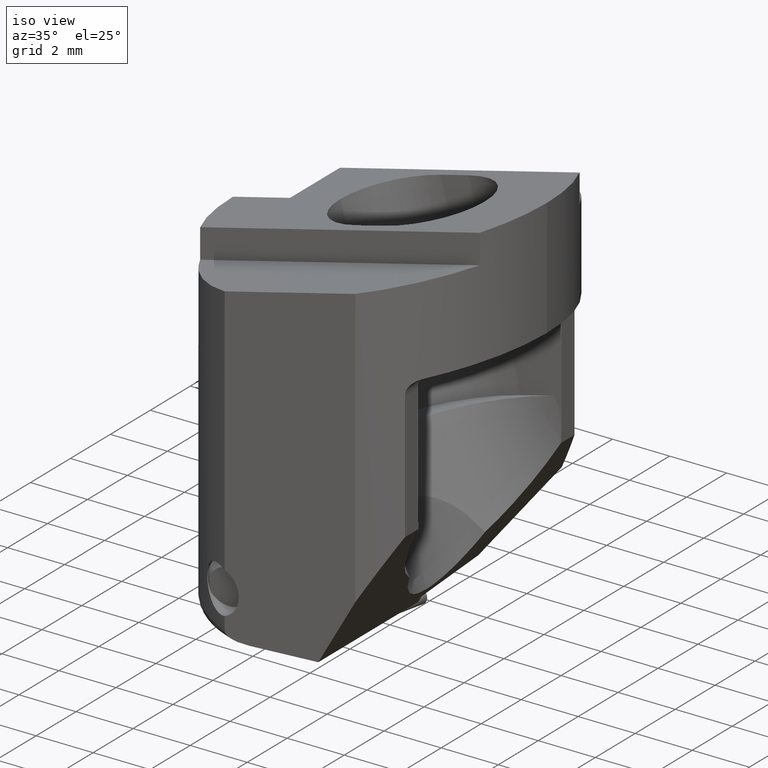
[diagram: clean part render]
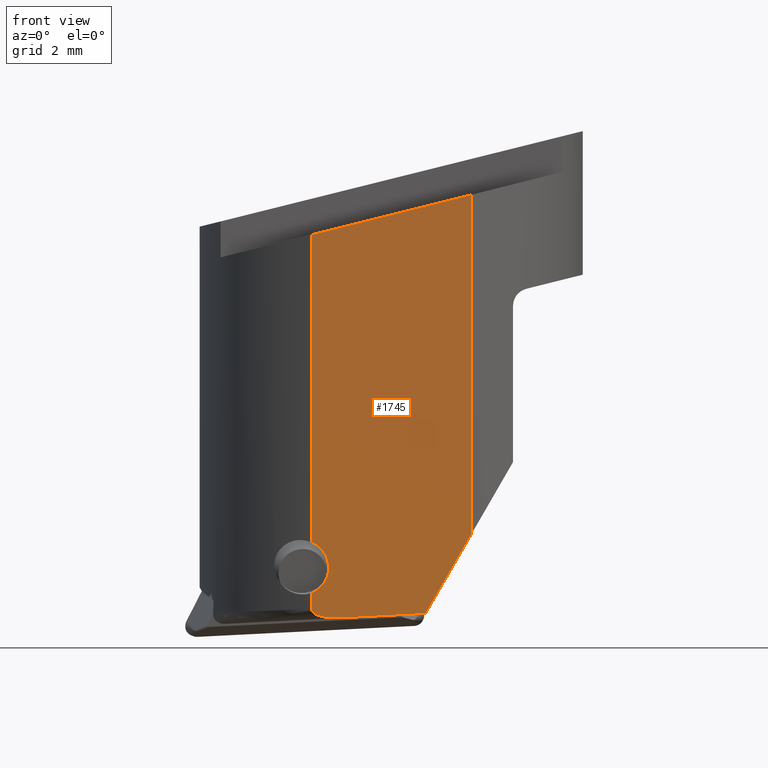
[diagram: tour spotlight — one face highlighted and labeled with its STEP entity id]
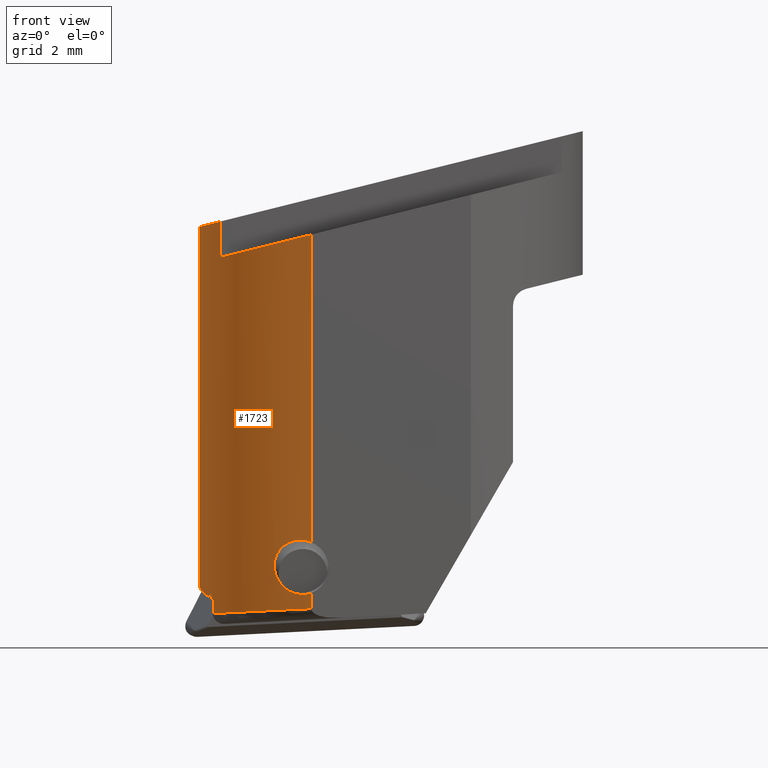
[diagram: tour spotlight — one face highlighted and labeled with its STEP entity id]
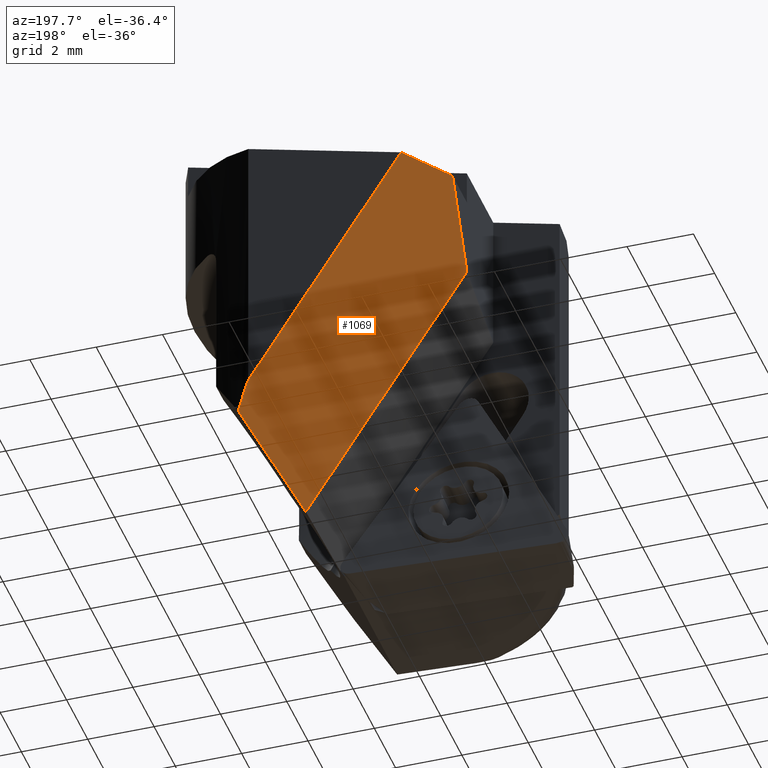
[diagram: tour spotlight — one face highlighted and labeled with its STEP entity id]
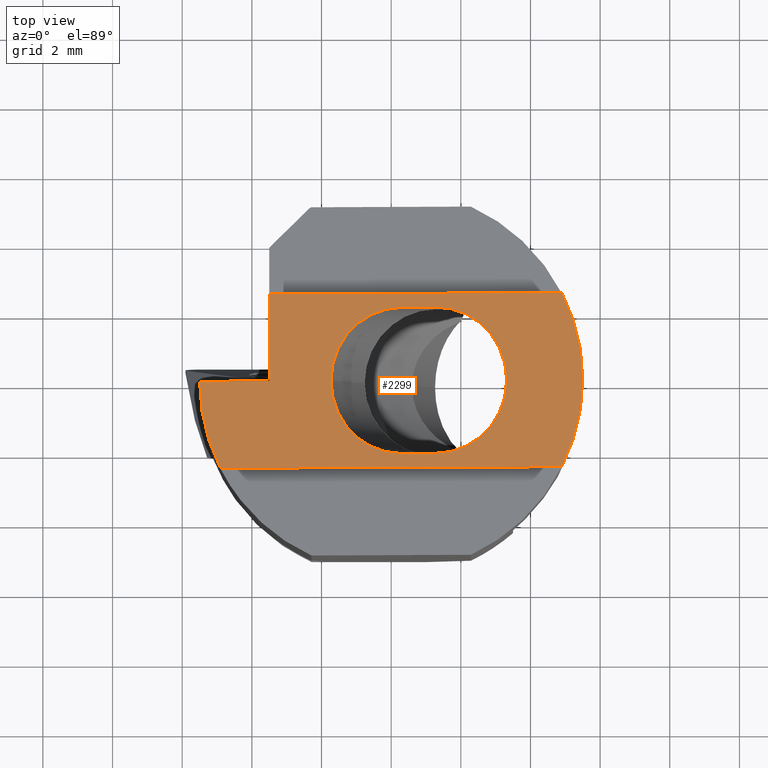
[diagram: tour spotlight — one face highlighted and labeled with its STEP entity id]
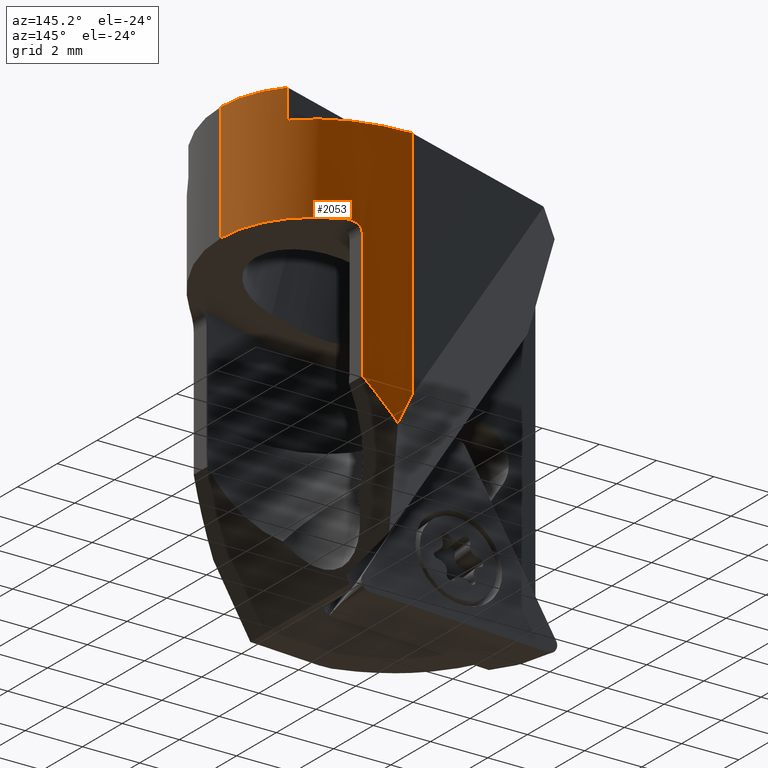
[diagram: tour spotlight — one face highlighted and labeled with its STEP entity id]
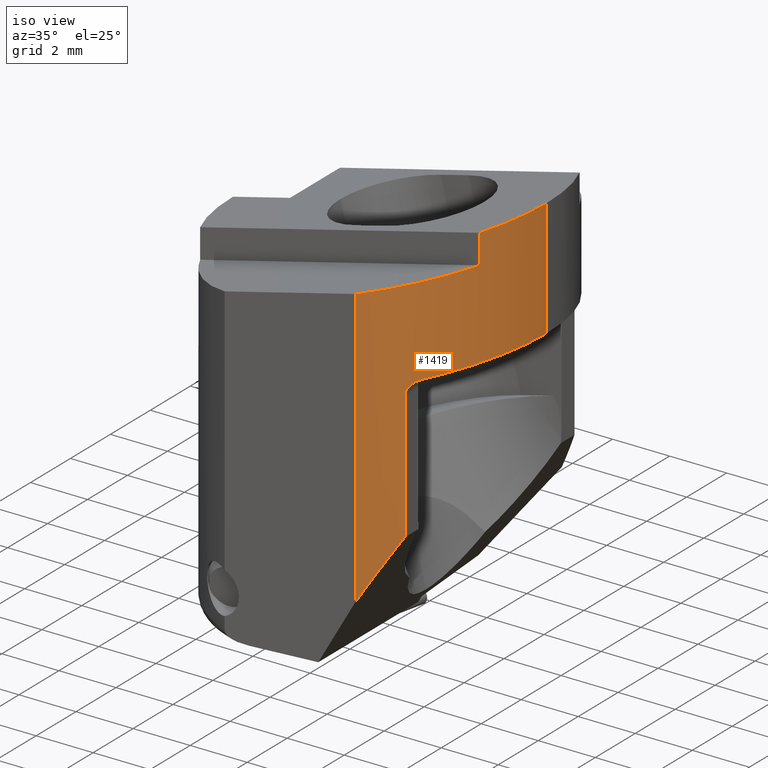
[diagram: tour spotlight — one face highlighted and labeled with its STEP entity id]
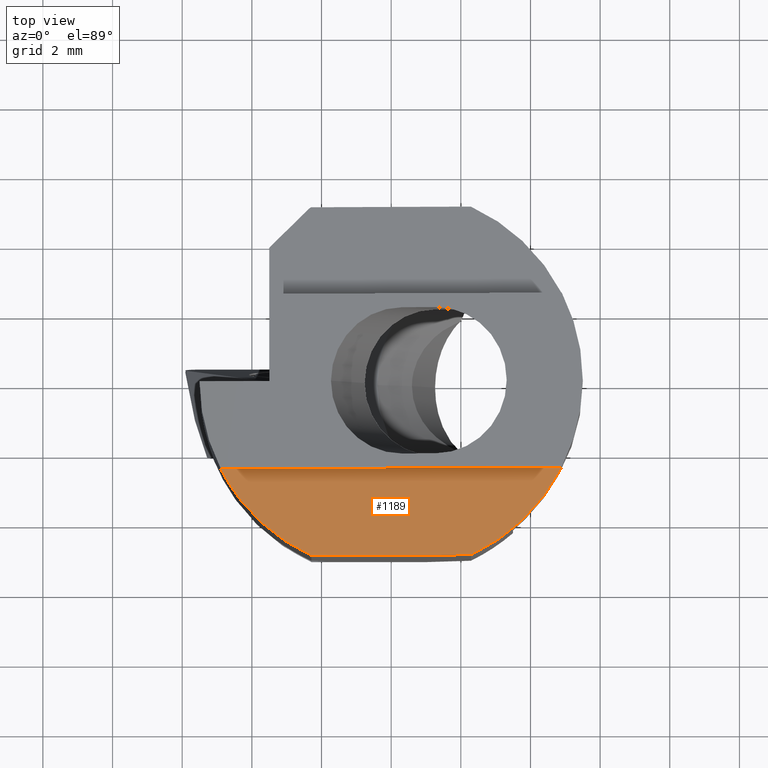
[diagram: tour spotlight — one face highlighted and labeled with its STEP entity id]
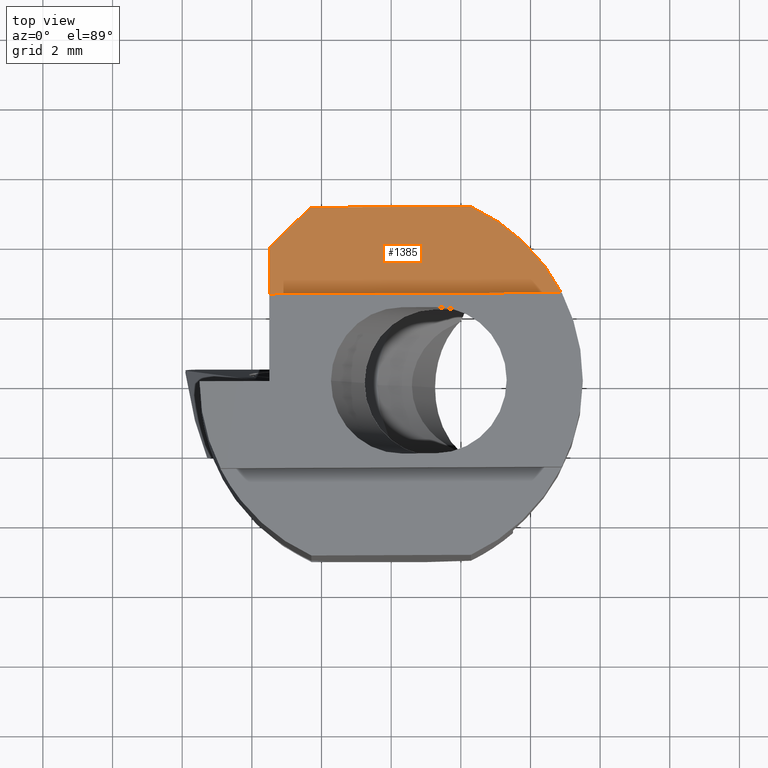
[diagram: tour spotlight — one face highlighted and labeled with its STEP entity id]
A machine part: a face-by-face anatomy tour. The part has 152 B-rep faces; the first image is the clean iso view, then the 8 largest visible faces are spotlighted one at a time (largest first), each with its STEP entity span.

Face 1 — front view, entity #1745. In plain terms, the highlighted planar face has unit normal (0, 1, 0).
Definition (entity closure, byte-faithful):
#971=EDGE_CURVE('NONE',#1629,#1835,#2559,.T.);
#1005=EDGE_CURVE('NONE',#1951,#1009,#2593,.T.);
#1009=VERTEX_POINT('NONE',#2597);
#1089=EDGE_CURVE('NONE',#1327,#1121,#2683,.F.);
#1121=VERTEX_POINT('NONE',#2716);
#1141=EDGE_CURVE('NONE',#1243,#1439,#2738,.T.);
#1157=VERTEX_POINT('NONE',#2756);
#1201=EDGE_CURVE('NONE',#1121,#1439,#2804,.F.);
#1243=VERTEX_POINT('NONE',#2851);
#1327=VERTEX_POINT('NONE',#2946);
#1439=VERTEX_POINT('NONE',#3073);
#1629=VERTEX_POINT('NONE',#3279);
#1745=ADVANCED_FACE('NONE',(#3405),#3406,.F.);
#1757=EDGE_CURVE('NONE',#1157,#1009,#3420,.T.);
#1809=EDGE_CURVE('NONE',#1951,#1629,#3477,.F.);
#1835=VERTEX_POINT('NONE',#3509);
#1951=VERTEX_POINT('NONE',#3634);
#2185=EDGE_CURVE('NONE',#1243,#1157,#3903,.T.);
#2359=EDGE_CURVE('NONE',#1835,#1327,#4097,.F.);
#2559=ELLIPSE('',#4362,0.782979473283811,0.78);
#2593=LINE('',#4423,#4424);
#2597=CARTESIAN_POINT('',(2.29128784747793,-5.0,-1.83063542203684));
#2683=LINE('',#4554,#4555);
#2716=CARTESIAN_POINT('',(-2.29128784747793,-5.0,-13.7103005992828));
#2738=LINE('',#4635,#4636);
#2756=CARTESIAN_POINT('',(2.29128784747792,-5.0,-11.5935508598942));
#2804=B_SPLINE_CURVE_WITH_KNOTS('',3,(#4725,#4726,#4727,#4728,#4729,#4730,#4731,#4732,#4733,#4734,#4735,#4736,#4737,#4738,#4739,#4740,#4741,#4742,#4743,#4744,#4745,#4746),.UNSPECIFIED.,.F.,.F.,(4,3,3,3,3,3,3,4),(0.0,0.5,0.75,0.875,0.9375,0.97221819758733,0.995920473331074,1.0),.UNSPECIFIED.);
#2851=CARTESIAN_POINT('',(0.991652417371709,-5.0,-13.8445854561548));
#2946=CARTESIAN_POINT('',(-2.29128784747792,-5.0,-13.263499003807));
#3073=CARTESIAN_POINT('',(-1.41252546348537,-5.0,-13.9710613761084));
#3279=CARTESIAN_POINT('',(-2.29128784747793,-5.0,-11.8038153555449));
#3405=FACE_OUTER_BOUND('',#5596,.T.);
#3406=PLANE('',#5597);
#3420=LINE('',#5616,#5617);
#3477=LINE('',#5688,#5689);
#3509=CARTESIAN_POINT('',(-1.7947886100061,-5.0,-12.4927221509311));
#3634=CARTESIAN_POINT('',(-2.29128784747792,-5.0,-2.97319986793785));
#3903=LINE('',#7046,#7047);
#4097=ELLIPSE('',#7321,0.782979473283811,0.78);
#4362=AXIS2_PLACEMENT_3D('',#7522,#7523,#7524);
#4423=CARTESIAN_POINT('',(-13.8905534233775,-5.0,-5.86522158842447));
#4424=VECTOR('',#7549,1.0);
#4554=CARTESIAN_POINT('',(-2.29128784747792,-5.0,-2.99853184945959E-016));
#4555=VECTOR('',#7649,1.0);
#4635=CARTESIAN_POINT('',(0.255275580821004,-5.0,-13.8833238284594));
#4636=VECTOR('',#7709,1.0);
#4725=CARTESIAN_POINT('',(-1.41252546348537,-5.0,-13.9710613761084));
#4726=CARTESIAN_POINT('',(-1.57616893842215,-5.0,-13.9796699294064));
#4727=CARTESIAN_POINT('',(-1.74102049605385,-5.0,-13.9811700698687));
#4728=CARTESIAN_POINT('',(-1.9030346534869,-5.0,-13.9539331846187));
#4729=CARTESIAN_POINT('',(-1.98404173220342,-5.0,-13.9403147419937));
#4730=CARTESIAN_POINT('',(-2.0645643932259,-5.0,-13.9211904645761));
#4731=CARTESIAN_POINT('',(-2.13875361350192,-5.0,-13.8862693020174));
#4732=CARTESIAN_POINT('',(-2.17584822363993,-5.0,-13.8688087207381));
#4733=CARTESIAN_POINT('',(-2.21143896686653,-5.0,-13.847090953245));
#4734=CARTESIAN_POINT('',(-2.24130033084107,-5.0,-13.818935259113));
#4735=CARTESIAN_POINT('',(-2.25623101282834,-5.0,-13.804857412047));
#4736=CARTESIAN_POINT('',(-2.26896055466302,-5.0,-13.7883201156439));
#4737=CARTESIAN_POINT('',(-2.27743793362269,-5.0,-13.7695950561679));
#4738=CARTESIAN_POINT('',(-2.28214704270661,-5.0,-13.7591934511323));
#4739=CARTESIAN_POINT('',(-2.28710907826473,-5.0,-13.7490193795026));
#4740=CARTESIAN_POINT('',(-2.28850932932944,-5.0,-13.7374103275377));
#4741=CARTESIAN_POINT('',(-2.28946528727521,-5.0,-13.7294847735079));
#4742=CARTESIAN_POINT('',(-2.29263910143178,-5.0,-13.7229522548933));
#4743=CARTESIAN_POINT('',(-2.29172152690847,-5.0,-13.7145747429056));
#4744=CARTESIAN_POINT('',(-2.29156359820242,-5.0,-13.7131328440794));
#4745=CARTESIAN_POINT('',(-2.29128696124504,-5.0,-13.7116376195962));
#4746=CARTESIAN_POINT('',(-2.29128784747792,-5.0,-13.7103005992828));
#5596=EDGE_LOOP('',(#8487,#8488,#8489,#8490,#8491,#8492,#8493,#8494,#8495));
#5597=AXIS2_PLACEMENT_3D('',#8496,#8497,#8498);
#5616=CARTESIAN_POINT('',(2.29128784747792,-5.0,-8.61056850613773E-016));
#5617=VECTOR('',#8517,1.0);
#5688=CARTESIAN_POINT('',(-2.29128784747792,-5.0,-2.99853184945959E-016));
#5689=VECTOR('',#8580,1.0);
#7046=CARTESIAN_POINT('',(-5.37540648533549,-5.0,-24.8726549704273));
#7047=VECTOR('',#9159,1.0);
#7321=AXIS2_PLACEMENT_3D('',#9398,#9399,#9400);
#7522=CARTESIAN_POINT('',(-2.57371964711467,-5.0,-12.5335441968006));
#7523=DIRECTION('',(0.0,1.0,0.0));
#7524=DIRECTION('',(0.0523359562429379,0.0,-0.998629534754574));
#7549=DIRECTION('',(0.970295726275998,0.0,0.241921895599661));
#7649=DIRECTION('',(1.22464679914735E-016,-0.0,1.0));
#7709=DIRECTION('',(-0.998619131815289,0.0,-0.0525340801050081));
#8487=ORIENTED_EDGE('',*,*,#1089,.T.);
#8488=ORIENTED_EDGE('',*,*,#1201,.T.);
#8489=ORIENTED_EDGE('',*,*,#1141,.F.);
#8490=ORIENTED_EDGE('',*,*,#2185,.T.);
#8491=ORIENTED_EDGE('',*,*,#1757,.T.);
#8492=ORIENTED_EDGE('',*,*,#1005,.F.);
#8493=ORIENTED_EDGE('',*,*,#1809,.T.);
#8494=ORIENTED_EDGE('',*,*,#971,.T.);
#8495=ORIENTED_EDGE('',*,*,#2359,.T.);
#8496=CARTESIAN_POINT('',(-9.47954982912627,-5.0,-31.0));
#8497=DIRECTION('',(0.0,1.0,0.0));
#8498=DIRECTION('',(1.0,0.0,-1.22464679914735E-016));
#8517=DIRECTION('',(1.22464679914735E-016,-0.0,1.0));
#8580=DIRECTION('',(1.22464679914735E-016,-0.0,1.0));
#9159=DIRECTION('',(0.500000000000002,0.0,0.866025403784438));
#9398=CARTESIAN_POINT('',(-2.57371964711467,-5.0,-12.5335441968006));
#9399=DIRECTION('',(0.0,-1.0,0.0));
#9400=DIRECTION('',(0.0523359562429379,0.0,-0.998629534754574));

Face 2 — front view, entity #1723. In plain terms, the highlighted cylindrical surface (partial cylindrical patch) has radius 5.5 mm, axis along (0, -0, 1).
Definition (entity closure, byte-faithful):
#1079=VERTEX_POINT('NONE',#2673);
#1089=EDGE_CURVE('NONE',#1327,#1121,#2683,.F.);
#1121=VERTEX_POINT('NONE',#2716);
#1179=VERTEX_POINT('NONE',#2779);
#1205=EDGE_CURVE('NONE',#1285,#1851,#2808,.T.);
#1217=VERTEX_POINT('NONE',#2822);
#1285=VERTEX_POINT('NONE',#2898);
#1327=VERTEX_POINT('NONE',#2946);
#1373=EDGE_CURVE('NONE',#2113,#1629,#2997,.F.);
#1405=VERTEX_POINT('NONE',#3033);
#1415=EDGE_CURVE('NONE',#1581,#1217,#3046,.F.);
#1429=EDGE_CURVE('NONE',#1581,#1901,#3063,.T.);
#1483=EDGE_CURVE('NONE',#1327,#2113,#3119,.T.);
#1581=VERTEX_POINT('NONE',#3226);
#1613=EDGE_CURVE('NONE',#1851,#1217,#3261,.T.);
#1629=VERTEX_POINT('NONE',#3279);
#1649=EDGE_CURVE('NONE',#1951,#1079,#3299,.T.);
#1723=ADVANCED_FACE('NONE',(#3380),#3381,.T.);
#1747=EDGE_CURVE('NONE',#2091,#1285,#3408,.T.);
#1809=EDGE_CURVE('NONE',#1951,#1629,#3477,.F.);
#1851=VERTEX_POINT('NONE',#3525);
#1901=VERTEX_POINT('NONE',#3581);
#1951=VERTEX_POINT('NONE',#3634);
#2091=VERTEX_POINT('NONE',#3798);
#2113=VERTEX_POINT('NONE',#3821);
#2117=EDGE_CURVE('NONE',#1901,#1179,#3825,.T.);
#2149=EDGE_CURVE('NONE',#1179,#1121,#3861,.F.);
#2217=EDGE_CURVE('NONE',#1405,#1079,#3935,.T.);
#2365=EDGE_CURVE('NONE',#2091,#1405,#4103,.T.);
#2673=CARTESIAN_POINT('',(-4.89897948556636,-2.5,-3.62337041609328));
#2683=LINE('',#4554,#4555);
#2716=CARTESIAN_POINT('',(-2.29128784747793,-5.0,-13.7103005992828));
#2779=CARTESIAN_POINT('',(-5.11268489702953,-2.02742524983936,-13.8506291780769));
#2808=ELLIPSE('',#4751,6.19567831724319,5.5);
#2822=CARTESIAN_POINT('',(-5.16964095755024,-1.87744836680509,-13.2723184413551));
#2898=CARTESIAN_POINT('',(-5.5,0.0,-13.097473321439));
#2946=CARTESIAN_POINT('',(-2.29128784747792,-5.0,-13.263499003807));
#2997=B_SPLINE_CURVE_WITH_KNOTS('',3,(#4994,#4995,#4996,#4997,#4998,#4999,#5000,#5001,#5002,#5003,#5004,#5005,#5006,#5007,#5008),.UNSPECIFIED.,.F.,.F.,(4,2,2,2,2,3,4),(3.47310137906908,3.78272490721872,4.11303378383692,4.44334266045511,4.74857975052637,5.05381684059763,5.09482191756925),.UNSPECIFIED.);
#3033=CARTESIAN_POINT('',(-4.89897948556636,-2.5,-2.59275678674339));
#3046=ELLIPSE('',#5069,21.3069059312565,5.5);
#3063=ELLIPSE('',#5089,6.19567831724319,5.5);
#3119=B_SPLINE_CURVE_WITH_KNOTS('',3,(#5168,#5169,#5170,#5171,#5172,#5173,#5174,#5175,#5176,#5177,#5178,#5179),.UNSPECIFIED.,.F.,.F.,(4,2,2,2,2,4),(3.4377941927064,3.74447789738551,4.09755731561157,4.45063673383764,4.75222678721763,5.01281176362601),.UNSPECIFIED.);
#3226=CARTESIAN_POINT('',(-5.13516988530629,-1.96977923865681,-13.4516064303271));
#3261=ELLIPSE('',#5367,12.1657069361372,5.5);
#3279=CARTESIAN_POINT('',(-2.29128784747793,-5.0,-11.8038153555449));
#3299=ELLIPSE('',#5448,5.66837496142443,5.5);
#3380=FACE_OUTER_BOUND('',#5565,.T.);
#3381=CYLINDRICAL_SURFACE('',#5566,5.5);
#3408=LINE('',#5600,#5601);
#3477=LINE('',#5688,#5689);
#3525=CARTESIAN_POINT('',(-5.23243898601753,-1.69457435882994,-13.3784430877874));
#3581=CARTESIAN_POINT('',(-5.09965898518187,-2.05997044514086,-13.4774427309688));
#3634=CARTESIAN_POINT('',(-2.29128784747792,-5.0,-2.97319986793785));
#3798=CARTESIAN_POINT('',(-5.5,6.73533494602308E-016,-2.74260803127491));
#3821=CARTESIAN_POINT('',(-3.35559140920948,-4.35775243611194,-12.5182538672466));
#3825=ELLIPSE('',#6901,63.1920253256835,5.5);
#3861=B_SPLINE_CURVE_WITH_KNOTS('',3,(#6949,#6950,#6951,#6952,#6953,#6954,#6955,#6956,#6957,#6958),.UNSPECIFIED.,.F.,.F.,(4,3,3,4),(0.0,0.494897694643977,0.670201107981378,1.0),.UNSPECIFIED.);
#3935=LINE('',#7092,#7093);
#4103=ELLIPSE('',#7332,5.66837496142443,5.5);
#4554=CARTESIAN_POINT('',(-2.29128784747792,-5.0,-2.99853184945959E-016));
#4555=VECTOR('',#7649,1.0);
#4751=AXIS2_PLACEMENT_3D('',#7784,#7785,#7786);
#4994=CARTESIAN_POINT('',(-2.29128784747793,-5.0,-11.8038153555449));
#4995=CARTESIAN_POINT('',(-2.38452297332803,-4.95727429783632,-11.7637670622196));
#4996=CARTESIAN_POINT('',(-2.48323257738755,-4.90858327158296,-11.7426223301573));
#4997=CARTESIAN_POINT('',(-2.67157388039941,-4.80882470815306,-11.7338313872695));
#4998=CARTESIAN_POINT('',(-2.77505604129143,-4.7499201673362,-11.747770921544));
#4999=CARTESIAN_POINT('',(-2.96712848537303,-4.63236723295886,-11.8162697852042));
#5000=CARTESIAN_POINT('',(-3.05579298988827,-4.5738076982176,-11.8707734292447));
#5001=CARTESIAN_POINT('',(-3.19366210902708,-4.4785044198203,-12.0003467443159));
#5002=CARTESIAN_POINT('',(-3.25393146954031,-4.43447008017279,-12.0822066821532));
#5003=CARTESIAN_POINT('',(-3.33550998883233,-4.37343893767484,-12.2695744253623));
#5004=CARTESIAN_POINT('',(-3.35667236078201,-4.35691985952945,-12.3753013521829));
#5005=CARTESIAN_POINT('',(-3.35667236078201,-4.35691985952945,-12.4770470488733));
#5006=CARTESIAN_POINT('',(-3.35667236078201,-4.35691985952945,-12.4907154078638));
#5007=CARTESIAN_POINT('',(-3.35631415687178,-4.35719590017233,-12.5044630203115));
#5008=CARTESIAN_POINT('',(-3.35559140920948,-4.35775243611194,-12.5182538672466));
#5069=AXIS2_PLACEMENT_3D('',#8090,#8091,#8092);
#5089=AXIS2_PLACEMENT_3D('',#8123,#8124,#8125);
#5168=CARTESIAN_POINT('',(-2.29128784747792,-5.0,-13.263499003807));
#5169=CARTESIAN_POINT('',(-2.38527842913614,-4.95692810449383,-13.2962704783194));
#5170=CARTESIAN_POINT('',(-2.48409780968231,-4.90812498479522,-13.3085244762428));
#5171=CARTESIAN_POINT('',(-2.67827557802366,-4.8052750261829,-13.2994611128473));
#5172=CARTESIAN_POINT('',(-2.78666877604757,-4.74320143717184,-13.2722635037085));
#5173=CARTESIAN_POINT('',(-2.98437211414643,-4.62136406495953,-13.1757169653893));
#5174=CARTESIAN_POINT('',(-3.07379805112137,-4.56171360956906,-13.1064622358828));
#5175=CARTESIAN_POINT('',(-3.20523454440864,-4.47011391466644,-12.9582890586026));
#5176=CARTESIAN_POINT('',(-3.2604915003529,-4.42960914135009,-12.8725697509303));
#5177=CARTESIAN_POINT('',(-3.33112012406048,-4.37667825081558,-12.6952312464426));
#5178=CARTESIAN_POINT('',(-3.35099838813891,-4.36128919095809,-12.6058939301037));
#5179=CARTESIAN_POINT('',(-3.35559140920948,-4.35775243611194,-12.5182538672466));
#5367=AXIS2_PLACEMENT_3D('',#8312,#8313,#8314);
#5448=AXIS2_PLACEMENT_3D('',#8335,#8336,#8337);
#5565=EDGE_LOOP('',(#8442,#8443,#8444,#8445,#8446,#8447,#8448,#8449,#8450,#8451,#8452,#8453,#8454,#8455));
#5566=AXIS2_PLACEMENT_3D('',#8456,#8457,#8458);
#5600=CARTESIAN_POINT('',(-5.5,0.0,5.67941808236266E-016));
#5601=VECTOR('',#8499,1.0);
#5688=CARTESIAN_POINT('',(-2.29128784747792,-5.0,-2.99853184945959E-016));
#5689=VECTOR('',#8580,1.0);
#6901=AXIS2_PLACEMENT_3D('',#9043,#9044,#9045);
#6949=CARTESIAN_POINT('',(-2.29128784747792,-5.0,-13.7103005992828));
#6950=CARTESIAN_POINT('',(-2.92040573464716,-4.71170196609963,-13.7415813224583));
#6951=CARTESIAN_POINT('',(-3.49457982830119,-4.30337941010404,-13.7701085152068));
#6952=CARTESIAN_POINT('',(-3.97410814110144,-3.80216576214548,-13.7939978339325));
#6953=CARTESIAN_POINT('',(-4.14396738865013,-3.62462510222861,-13.8024599447086));
#6954=CARTESIAN_POINT('',(-4.30099384437443,-3.43685871561837,-13.8101779008129));
#6955=CARTESIAN_POINT('',(-4.44585465523934,-3.23795867553722,-13.8174222201871));
#6956=CARTESIAN_POINT('',(-4.71838177841756,-2.86376737148672,-13.8310509822149));
#6957=CARTESIAN_POINT('',(-4.94254313539954,-2.45648235816362,-13.8421656774898));
#6958=CARTESIAN_POINT('',(-5.11268489702953,-2.02742524983936,-13.8506291780769));
#7092=CARTESIAN_POINT('',(-4.89897948556636,-2.5,7.44563666962445E-016));
#7093=VECTOR('',#9176,1.0);
#7332=AXIS2_PLACEMENT_3D('',#9403,#9404,#9405);
#7649=DIRECTION('',(1.22464679914735E-016,-0.0,1.0));
#7784=CARTESIAN_POINT('',(-1.94857483342956E-015,0.0,-15.9113210011755));
#7785=DIRECTION('',(0.454162972261685,-0.0754790873051704,0.887715552418685));
#7786=DIRECTION('',(0.875704278916419,-0.145536654810685,-0.460392330511695));
#8090=CARTESIAN_POINT('',(5.66639729735113E-016,0.0,4.62696452666703));
#8091=DIRECTION('',(-0.626740961602152,-0.735230234760868,0.258132270248196));
#8092=DIRECTION('',(0.167457263354005,0.196444225910245,0.966109585428336));
#8123=CARTESIAN_POINT('',(-1.94857483342956E-015,0.0,-15.9113210011755));
#8124=DIRECTION('',(0.454162972261685,-0.0754790873051704,0.887715552418685));
#8125=DIRECTION('',(0.875704278916419,-0.145536654810685,-0.460392330511695));
#8312=CARTESIAN_POINT('',(-3.55619435164856E-016,0.0,-2.9038530571627));
#8313=DIRECTION('',(-0.890906947131282,-0.043577871373828,0.452090456302437));
#8314=DIRECTION('',(0.451550592491225,0.0220871704971213,0.891972095595067));
#8335=CARTESIAN_POINT('',(-2.9415007557493E-016,0.0,-2.40191764498735));
#8336=DIRECTION('',(0.241921895599661,3.88896262387368E-017,-0.970295726275998));
#8337=DIRECTION('',(0.970295726275998,0.0,0.241921895599661));
#8442=ORIENTED_EDGE('',*,*,#2117,.T.);
#8443=ORIENTED_EDGE('',*,*,#2149,.T.);
#8444=ORIENTED_EDGE('',*,*,#1089,.F.);
#8445=ORIENTED_EDGE('',*,*,#1483,.T.);
#8446=ORIENTED_EDGE('',*,*,#1373,.T.);
#8447=ORIENTED_EDGE('',*,*,#1809,.F.);
#8448=ORIENTED_EDGE('',*,*,#1649,.T.);
#8449=ORIENTED_EDGE('',*,*,#2217,.F.);
#8450=ORIENTED_EDGE('',*,*,#2365,.F.);
#8451=ORIENTED_EDGE('',*,*,#1747,.T.);
#8452=ORIENTED_EDGE('',*,*,#1205,.T.);
#8453=ORIENTED_EDGE('',*,*,#1613,.T.);
#8454=ORIENTED_EDGE('',*,*,#1415,.F.);
#8455=ORIENTED_EDGE('',*,*,#1429,.T.);
#8456=CARTESIAN_POINT('',(0.0,0.0,0.0));
#8457=DIRECTION('',(1.22464679914735E-016,-0.0,1.0));
#8458=DIRECTION('',(1.0,0.0,-1.22464679914735E-016));
#8499=DIRECTION('',(-1.22464679914735E-016,0.0,-1.0));
#8580=DIRECTION('',(1.22464679914735E-016,-0.0,1.0));
#9043=CARTESIAN_POINT('',(-4.505238424544E-015,0.0,-36.7880635272204));
#9044=DIRECTION('',(0.00456137913876213,-0.996194698091746,-0.0870362988312799));
#9045=DIRECTION('',(0.000398517877010244,-0.0870353864686632,0.996205140864949));
#9176=DIRECTION('',(-1.22464679914735E-016,0.0,-1.0));
#9403=CARTESIAN_POINT('',(-1.67936307340832E-016,0.0,-1.37130401563745));
#9404=DIRECTION('',(-0.241921895599661,0.0,0.970295726275998));
#9405=DIRECTION('',(0.970295726275998,0.0,0.241921895599661));

Face 3 — auxiliary view, entity #1069. In plain terms, the highlighted planar face has unit normal (0.593, -0.7071, 0.3851).
Definition (entity closure, byte-faithful):
#865=EDGE_CURVE('NONE',#2255,#1177,#2444,.T.);
#879=EDGE_CURVE('NONE',#1547,#887,#2460,.F.);
#887=VERTEX_POINT('NONE',#2470);
#997=VERTEX_POINT('NONE',#2585);
#1069=ADVANCED_FACE('NONE',(#2662),#2663,.F.);
#1101=EDGE_CURVE('NONE',#1187,#997,#2695,.T.);
#1177=VERTEX_POINT('NONE',#2777);
#1187=VERTEX_POINT('NONE',#2788);
#1547=VERTEX_POINT('NONE',#3190);
#1559=EDGE_CURVE('NONE',#1975,#1547,#3203,.T.);
#1789=EDGE_CURVE('NONE',#1177,#1975,#3455,.F.);
#1975=VERTEX_POINT('NONE',#3663);
#2023=EDGE_CURVE('NONE',#887,#1187,#3720,.T.);
#2255=VERTEX_POINT('NONE',#3976);
#2341=EDGE_CURVE('NONE',#997,#2255,#4079,.F.);
#2444=LINE('',#4192,#4193);
#2460=LINE('',#4217,#4218);
#2470=CARTESIAN_POINT('',(-3.5,2.49596890300842,-5.75478938998411));
#2585=CARTESIAN_POINT('',(2.65314188419159,4.81776277356496,-10.9668012833822));
#2662=FACE_OUTER_BOUND('',#4522,.T.);
#2663=PLANE('',#4523);
#2695=LINE('',#4574,#4575);
#2777=CARTESIAN_POINT('',(-2.29128784747792,5.0,-3.01844532769661));
#2788=CARTESIAN_POINT('',(1.35023679453946,2.49596890300842,-13.2234990960998));
#3190=CARTESIAN_POINT('',(-3.5,3.84679556468505,-3.27456565493845));
#3203=LINE('',#5290,#5291);
#3455=ELLIPSE('',#5662,14.2813388189068,5.5);
#3663=CARTESIAN_POINT('',(-2.33957436697045,4.97758895263709,-2.98523904940717));
#3720=LINE('',#5996,#5997);
#3976=CARTESIAN_POINT('',(2.29128784747792,5.0,-10.0749930843874));
#4079=ELLIPSE('',#7293,14.2813388189068,5.5);
#4192=CARTESIAN_POINT('',(1.39105570015339,5.0,-8.68875714142274));
#4193=VECTOR('',#7382,1.0);
#4217=CARTESIAN_POINT('',(-3.5,5.99905568606557,0.677152791612382));
#4218=VECTOR('',#7405,1.0);
#4522=EDGE_LOOP('',(#7629,#7630,#7631,#7632,#7633,#7634,#7635));
#4523=AXIS2_PLACEMENT_3D('',#7636,#7637,#7638);
#4574=CARTESIAN_POINT('',(-0.593144552031376,-0.967162014552761,-16.5895343268421));
#4575=VECTOR('',#7658,1.0);
#5290=CARTESIAN_POINT('',(-5.2033028006127,2.18698774090871,-3.6992467404524));
#5291=VECTOR('',#8258,1.0);
#5662=AXIS2_PLACEMENT_3D('',#8553,#8554,#8555);
#5996=CARTESIAN_POINT('',(-7.93153152145359,2.49596890300842,1.06917073594219));
#5997=VECTOR('',#8906,1.0);
#7293=AXIS2_PLACEMENT_3D('',#9388,#9389,#9390);
#7382=DIRECTION('',(-0.544639035015028,0.0,0.838670567945423));
#7405=DIRECTION('',(1.5224073078903E-016,0.478300076895649,0.878196468019324));
#7629=ORIENTED_EDGE('',*,*,#1789,.F.);
#7630=ORIENTED_EDGE('',*,*,#865,.F.);
#7631=ORIENTED_EDGE('',*,*,#2341,.F.);
#7632=ORIENTED_EDGE('',*,*,#1101,.F.);
#7633=ORIENTED_EDGE('',*,*,#2023,.F.);
#7634=ORIENTED_EDGE('',*,*,#879,.F.);
#7635=ORIENTED_EDGE('',*,*,#1559,.F.);
#7636=CARTESIAN_POINT('',(-7.93153152145359,2.49596890300842,1.06917073594219));
#7637=DIRECTION('',(0.593029645775781,-0.707106781186549,0.385117954958023));
#7638=DIRECTION('',(-1.07548049358238E-016,-0.478300076895649,-0.878196468019324));
#7658=DIRECTION('',(0.373311855226478,0.665246597127308,0.646595100320055));
#8258=DIRECTION('',(-0.705039606503716,-0.687035948350526,-0.175786117014908));
#8553=CARTESIAN_POINT('',(-1.92601567582171E-015,0.0,-15.7271114999253));
#8554=DIRECTION('',(-0.593029645775781,0.707106781186549,-0.385117954958023));
#8555=DIRECTION('',(0.247474745302976,-0.295079802203196,-0.922867358166356));
#8906=DIRECTION('',(0.544639035015028,-9.55930233957512E-017,-0.838670567945424));
#9388=CARTESIAN_POINT('',(-1.92601567582171E-015,0.0,-15.7271114999253));
#9389=DIRECTION('',(-0.593029645775781,0.707106781186549,-0.385117954958023));
#9390=DIRECTION('',(0.247474745302976,-0.295079802203196,-0.922867358166356));

Face 4 — top view, entity #2299. In plain terms, the highlighted planar face has unit normal (0.2419, 0, -0.9703).
Definition (entity closure, byte-faithful):
#837=EDGE_CURVE('NONE',#2095,#1277,#2415,.T.);
#937=VERTEX_POINT('NONE',#2522);
#947=EDGE_CURVE('NONE',#1405,#1519,#2533,.T.);
#951=EDGE_CURVE('NONE',#1277,#1281,#2537,.F.);
#1041=VERTEX_POINT('NONE',#2631);
#1111=EDGE_CURVE('NONE',#937,#2091,#2705,.T.);
#1161=VERTEX_POINT('',#2760);
#1277=VERTEX_POINT('NONE',#2890);
#1281=VERTEX_POINT('NONE',#2894);
#1309=EDGE_CURVE('NONE',#1161,#1041,#2926,.F.);
#1377=VERTEX_POINT('NONE',#3001);
#1405=VERTEX_POINT('NONE',#3033);
#1519=VERTEX_POINT('NONE',#3161);
#1557=EDGE_CURVE('NONE',#1985,#1377,#3201,.T.);
#1563=VERTEX_POINT('NONE',#3207);
#1631=EDGE_CURVE('NONE',#1563,#937,#3281,.T.);
#1675=EDGE_CURVE('NONE',#1857,#2095,#3330,.F.);
#1737=EDGE_CURVE('NONE',#1519,#1985,#3397,.T.);
#1857=VERTEX_POINT('NONE',#3533);
#1985=VERTEX_POINT('NONE',#3675);
#2091=VERTEX_POINT('NONE',#3798);
#2095=VERTEX_POINT('NONE',#3803);
#2097=EDGE_CURVE('NONE',#1281,#1161,#3805,.F.);
#2299=ADVANCED_FACE('NONE',(#4028,#4029),#4030,.F.);
#2339=EDGE_CURVE('NONE',#1041,#1857,#4077,.F.);
#2365=EDGE_CURVE('NONE',#2091,#1405,#4103,.T.);
#2381=EDGE_CURVE('NONE',#1377,#1563,#4121,.T.);
#2415=CIRCLE('',#4156,2.1);
#2522=CARTESIAN_POINT('',(-3.5,0.0,-2.24395202558856));
#2533=LINE('',#4325,#4326);
#2537=LINE('',#4332,#4333);
#2631=CARTESIAN_POINT('',(0.308917864423413,-2.1,-1.29428214145818));
#2705=LINE('',#4589,#4590);
#2760=CARTESIAN_POINT('',(-1.72870316075618,-2.57167334302699E-016,-1.80231812221747));
#2890=CARTESIAN_POINT('',(1.27921359069941,2.1,-1.05236024585852));
#2894=CARTESIAN_POINT('',(0.308917864423413,2.1,-1.29428214145818));
#2926=CIRCLE('',#4898,2.1);
#3001=CARTESIAN_POINT('',(4.89897948556636,2.5,-0.149851244531517));
#3033=CARTESIAN_POINT('',(-4.89897948556636,-2.5,-2.59275678674339));
#3161=CARTESIAN_POINT('',(4.89897948556636,-2.5,-0.149851244531517));
#3201=ELLIPSE('',#5287,5.66837496142443,5.5);
#3207=CARTESIAN_POINT('',(-3.5,2.5,-2.24395202558856));
#3281=LINE('',#5392,#5393);
#3330=CIRCLE('',#5490,2.1);
#3397=ELLIPSE('',#5587,5.66837496142443,5.5);
#3533=CARTESIAN_POINT('',(1.27921359069941,-2.1,-1.05236024585852));
#3675=CARTESIAN_POINT('',(5.5,0.0,-8.90396174028145E-016));
#3798=CARTESIAN_POINT('',(-5.5,6.73533494602308E-016,-2.74260803127491));
#3803=CARTESIAN_POINT('',(3.31683461587901,0.0,-0.544324265099237));
#3805=CIRCLE('',#6873,2.1);
#4028=FACE_OUTER_BOUND('',#7216,.T.);
#4029=FACE_BOUND('',#7217,.T.);
#4030=PLANE('',#7218);
#4077=LINE('',#7289,#7290);
#4103=ELLIPSE('',#7332,5.66837496142443,5.5);
#4121=LINE('',#7356,#7357);
#4156=AXIS2_PLACEMENT_3D('',#7363,#7364,#7365);
#4325=CARTESIAN_POINT('',(-3.4426438841707,-2.5,-2.229651539778));
#4326=VECTOR('',#7491,1.0);
#4332=CARTESIAN_POINT('',(2.90445893221171,2.1,-0.647141070729093));
#4333=VECTOR('',#7495,1.0);
#4589=CARTESIAN_POINT('',(-2.7872953928729,0.0,-2.06625480927643));
#4590=VECTOR('',#7663,1.0);
#4898=AXIS2_PLACEMENT_3D('',#7942,#7943,#7944);
#5287=AXIS2_PLACEMENT_3D('',#8255,#8256,#8257);
#5392=CARTESIAN_POINT('',(-3.5,3.25,-2.24395202558856));
#5393=VECTOR('',#8333,1.0);
#5490=AXIS2_PLACEMENT_3D('',#8386,#8387,#8388);
#5587=AXIS2_PLACEMENT_3D('',#8480,#8481,#8482);
#6873=AXIS2_PLACEMENT_3D('',#9034,#9035,#9036);
#7216=EDGE_LOOP('',(#9304,#9305,#9306,#9307,#9308,#9309,#9310));
#7217=EDGE_LOOP('',(#9311,#9312,#9313,#9314,#9315,#9316));
#7218=AXIS2_PLACEMENT_3D('',#9317,#9318,#9319);
#7289=CARTESIAN_POINT('',(2.90445893221171,-2.1,-0.647141070729093));
#7290=VECTOR('',#9387,1.0);
#7332=AXIS2_PLACEMENT_3D('',#9403,#9404,#9405);
#7356=CARTESIAN_POINT('',(-3.53063457246766,2.5,-2.25159008235988));
#7357=VECTOR('',#9429,1.0);
#7363=CARTESIAN_POINT('',(1.27921359069941,0.0,-1.05236024585852));
#7364=DIRECTION('',(-0.241921895599661,0.0,0.970295726275998));
#7365=DIRECTION('',(0.970295726275998,0.0,0.241921895599661));
#7491=DIRECTION('',(0.970295726275998,0.0,0.241921895599661));
#7495=DIRECTION('',(0.970295726275998,0.0,0.241921895599661));
#7663=DIRECTION('',(-0.970295726275998,0.0,-0.241921895599661));
#7942=CARTESIAN_POINT('',(0.308917864423413,0.0,-1.29428214145818));
#7943=DIRECTION('',(0.241921895599661,0.0,-0.970295726275998));
#7944=DIRECTION('',(0.970295726275998,0.0,0.241921895599661));
#8255=CARTESIAN_POINT('',(-1.67936307340832E-016,0.0,-1.37130401563745));
#8256=DIRECTION('',(-0.241921895599661,0.0,0.970295726275998));
#8257=DIRECTION('',(0.970295726275998,0.0,0.241921895599661));
#8333=DIRECTION('',(0.0,-1.0,-0.0));
#8386=CARTESIAN_POINT('',(1.27921359069941,0.0,-1.05236024585852));
#8387=DIRECTION('',(0.241921895599661,0.0,-0.970295726275998));
#8388=DIRECTION('',(0.970295726275998,0.0,0.241921895599661));
#8480=CARTESIAN_POINT('',(-1.67936307340832E-016,0.0,-1.37130401563745));
#8481=DIRECTION('',(-0.241921895599661,0.0,0.970295726275998));
#8482=DIRECTION('',(0.970295726275998,0.0,0.241921895599661));
#9034=CARTESIAN_POINT('',(0.308917864423413,0.0,-1.29428214145818));
#9035=DIRECTION('',(0.241921895599661,0.0,-0.970295726275998));
#9036=DIRECTION('',(0.970295726275998,0.0,0.241921895599661));
#9304=ORIENTED_EDGE('',*,*,#2365,.T.);
#9305=ORIENTED_EDGE('',*,*,#947,.T.);
#9306=ORIENTED_EDGE('',*,*,#1737,.T.);
#9307=ORIENTED_EDGE('',*,*,#1557,.T.);
#9308=ORIENTED_EDGE('',*,*,#2381,.T.);
#9309=ORIENTED_EDGE('',*,*,#1631,.T.);
#9310=ORIENTED_EDGE('',*,*,#1111,.T.);
#9311=ORIENTED_EDGE('',*,*,#951,.F.);
#9312=ORIENTED_EDGE('',*,*,#837,.F.);
#9313=ORIENTED_EDGE('',*,*,#1675,.F.);
#9314=ORIENTED_EDGE('',*,*,#2339,.F.);
#9315=ORIENTED_EDGE('',*,*,#1309,.F.);
#9316=ORIENTED_EDGE('',*,*,#2097,.F.);
#9317=CARTESIAN_POINT('',(5.5,-15.5,-6.73555739531045E-016));
#9318=DIRECTION('',(0.241921895599661,0.0,-0.970295726275998));
#9319=DIRECTION('',(0.0,-1.0,0.0));
#9387=DIRECTION('',(-0.970295726275998,0.0,-0.241921895599661));
#9403=CARTESIAN_POINT('',(-1.67936307340832E-016,0.0,-1.37130401563745));
#9404=DIRECTION('',(-0.241921895599661,0.0,0.970295726275998));
#9405=DIRECTION('',(0.970295726275998,0.0,0.241921895599661));
#9429=DIRECTION('',(-0.970295726275998,0.0,-0.241921895599661));

Face 5 — auxiliary view, entity #2053. In plain terms, the highlighted cylindrical surface (partial cylindrical patch) has radius 5.5 mm, axis along (0, -0, 1).
Definition (entity closure, byte-faithful):
#855=VERTEX_POINT('NONE',#2434);
#915=EDGE_CURVE('NONE',#997,#1475,#2498,.T.);
#997=VERTEX_POINT('NONE',#2585);
#1377=VERTEX_POINT('NONE',#3001);
#1433=VERTEX_POINT('NONE',#3067);
#1449=EDGE_CURVE('NONE',#1377,#1433,#3083,.T.);
#1475=VERTEX_POINT('NONE',#3111);
#1557=EDGE_CURVE('NONE',#1985,#1377,#3201,.T.);
#1573=EDGE_CURVE('NONE',#1625,#2255,#3217,.F.);
#1589=EDGE_CURVE('NONE',#1433,#1625,#3235,.T.);
#1625=VERTEX_POINT('NONE',#3275);
#1627=EDGE_CURVE('NONE',#1475,#2243,#3277,.T.);
#1695=EDGE_CURVE('NONE',#855,#1929,#3351,.T.);
#1929=VERTEX_POINT('NONE',#3610);
#1985=VERTEX_POINT('NONE',#3675);
#2053=ADVANCED_FACE('NONE',(#3754),#3755,.T.);
#2131=EDGE_CURVE('NONE',#1929,#1985,#3841,.T.);
#2243=VERTEX_POINT('NONE',#3963);
#2255=VERTEX_POINT('NONE',#3976);
#2327=EDGE_CURVE('NONE',#2243,#855,#4063,.T.);
#2341=EDGE_CURVE('NONE',#997,#2255,#4079,.F.);
#2434=CARTESIAN_POINT('',(3.87903905220017,3.89910964599689,-4.52660547320129));
#2498=ELLIPSE('',#4276,11.0,5.5);
#2585=CARTESIAN_POINT('',(2.65314188419159,4.81776277356496,-10.9668012833822));
#3001=CARTESIAN_POINT('',(4.89897948556636,2.5,-0.149851244531517));
#3067=CARTESIAN_POINT('',(4.89897948556636,2.5,-1.18046487388141));
#3083=LINE('',#5115,#5116);
#3111=CARTESIAN_POINT('',(3.5,4.24264068711929,-9.5));
#3201=ELLIPSE('',#5287,5.66837496142443,5.5);
#3217=LINE('',#5310,#5311);
#3235=ELLIPSE('',#5332,5.66837496142443,5.5);
#3275=CARTESIAN_POINT('',(2.29128784747792,5.0,-1.83063542203685));
#3277=LINE('',#5386,#5387);
#3351=ELLIPSE('',#5523,5.66837496142443,5.5);
#3610=CARTESIAN_POINT('',(5.5,0.0,-4.12245451739959));
#3675=CARTESIAN_POINT('',(5.5,0.0,-8.90396174028145E-016));
#3754=FACE_OUTER_BOUND('',#6804,.T.);
#3755=CYLINDRICAL_SURFACE('',#6805,5.5);
#3841=LINE('',#6922,#6923);
#3963=CARTESIAN_POINT('',(3.5,4.24264068711929,-5.0117533363393));
#3976=CARTESIAN_POINT('',(2.29128784747792,5.0,-10.0749930843874));
#4063=B_SPLINE_CURVE_WITH_KNOTS('',3,(#7262,#7263,#7264,#7265,#7266,#7267,#7268,#7269,#7270,#7271),.UNSPECIFIED.,.F.,.F.,(4,2,2,2,4),(0.0,0.184287055061638,0.368574110123276,0.635501411075582,0.734792715818787),.UNSPECIFIED.);
#4079=ELLIPSE('',#7293,14.2813388189068,5.5);
#4276=AXIS2_PLACEMENT_3D('',#7444,#7445,#7446);
#5115=CARTESIAN_POINT('',(4.89897948556636,2.5,-4.66115993732797E-016));
#5116=VECTOR('',#8136,1.0);
#5287=AXIS2_PLACEMENT_3D('',#8255,#8256,#8257);
#5310=CARTESIAN_POINT('',(2.29128784747792,5.0,-8.0822663896053E-016));
#5311=VECTOR('',#8266,1.0);
#5332=AXIS2_PLACEMENT_3D('',#8284,#8285,#8286);
#5386=CARTESIAN_POINT('',(3.5,4.24264068711929,-2.14313189850787E-016));
#5387=VECTOR('',#8332,1.0);
#5523=AXIS2_PLACEMENT_3D('',#8417,#8418,#8419);
#6804=EDGE_LOOP('',(#8954,#8955,#8956,#8957,#8958,#8959,#8960,#8961,#8962,#8963));
#6805=AXIS2_PLACEMENT_3D('',#8964,#8965,#8966);
#6922=CARTESIAN_POINT('',(5.5,0.0,-6.73555739531045E-016));
#6923=VECTOR('',#9077,1000.0);
#7262=CARTESIAN_POINT('',(3.5,4.24264068711929,-5.0117533363393));
#7263=CARTESIAN_POINT('',(3.5,4.24264068711929,-4.95032431798542));
#7264=CARTESIAN_POINT('',(3.51208127982504,4.23274834508691,-4.88621677142231));
#7265=CARTESIAN_POINT('',(3.55736764239529,4.19475970510912,-4.77112779010433));
#7266=CARTESIAN_POINT('',(3.59042353266651,4.1666594434675,-4.72008901347));
#7267=CARTESIAN_POINT('',(3.67662424813239,4.09109190640971,-4.62272072577451));
#7268=CARTESIAN_POINT('',(3.73970142349625,4.0339665707216,-4.57895299194407));
#7269=CARTESIAN_POINT('',(3.82969350617826,3.94773221212725,-4.54090577724048));
#7270=CARTESIAN_POINT('',(3.85444261025143,3.92357947822187,-4.53273805494942));
#7271=CARTESIAN_POINT('',(3.87903905220017,3.89910964599689,-4.52660547320129));
#7293=AXIS2_PLACEMENT_3D('',#9388,#9389,#9390);
#7444=CARTESIAN_POINT('',(-1.90581712629742E-015,0.0,-15.562177826491));
#7445=DIRECTION('',(0.866025403784438,0.0,-0.500000000000001));
#7446=DIRECTION('',(0.500000000000002,0.0,0.866025403784438));
#8136=DIRECTION('',(-1.22464679914735E-016,0.0,-1.0));
#8255=CARTESIAN_POINT('',(-1.67936307340832E-016,0.0,-1.37130401563745));
#8256=DIRECTION('',(-0.241921895599661,0.0,0.970295726275998));
#8257=DIRECTION('',(0.970295726275998,0.0,0.241921895599661));
#8266=DIRECTION('',(1.22464679914735E-016,-0.0,1.0));
#8284=CARTESIAN_POINT('',(-2.94150075574931E-016,0.0,-2.40191764498735));
#8285=DIRECTION('',(-0.241921895599661,0.0,0.970295726275998));
#8286=DIRECTION('',(0.970295726275998,0.0,0.241921895599661));
#8332=DIRECTION('',(1.22464679914735E-016,-0.0,1.0));
#8417=CARTESIAN_POINT('',(-6.72791380277227E-016,0.0,-5.49375853303704));
#8418=DIRECTION('',(0.241921895599661,0.0,-0.970295726275998));
#8419=DIRECTION('',(0.970295726275998,0.0,0.241921895599661));
#8954=ORIENTED_EDGE('',*,*,#2131,.F.);
#8955=ORIENTED_EDGE('',*,*,#1695,.F.);
#8956=ORIENTED_EDGE('',*,*,#2327,.F.);
#8957=ORIENTED_EDGE('',*,*,#1627,.F.);
#8958=ORIENTED_EDGE('',*,*,#915,.F.);
#8959=ORIENTED_EDGE('',*,*,#2341,.T.);
#8960=ORIENTED_EDGE('',*,*,#1573,.F.);
#8961=ORIENTED_EDGE('',*,*,#1589,.F.);
#8962=ORIENTED_EDGE('',*,*,#1449,.F.);
#8963=ORIENTED_EDGE('',*,*,#1557,.F.);
#8964=CARTESIAN_POINT('',(0.0,0.0,0.0));
#8965=DIRECTION('',(1.22464679914735E-016,-0.0,1.0));
#8966=DIRECTION('',(1.0,0.0,-1.22464679914735E-016));
#9077=DIRECTION('',(1.22464679914735E-016,0.0,1.0));
#9388=CARTESIAN_POINT('',(-1.92601567582171E-015,0.0,-15.7271114999253));
#9389=DIRECTION('',(-0.593029645775781,0.707106781186549,-0.385117954958023));
#9390=DIRECTION('',(0.247474745302976,-0.295079802203196,-0.922867358166356));

Face 6 — iso view, entity #1419. In plain terms, the highlighted cylindrical surface (partial cylindrical patch) has radius 5.5 mm, axis along (0, -0, 1).
Definition (entity closure, byte-faithful):
#861=VERTEX_POINT('NONE',#2440);
#905=VERTEX_POINT('NONE',#2488);
#989=EDGE_CURVE('NONE',#1929,#861,#2577,.T.);
#1009=VERTEX_POINT('NONE',#2597);
#1059=EDGE_CURVE('NONE',#2165,#1009,#2651,.T.);
#1087=EDGE_CURVE('NONE',#905,#1157,#2681,.T.);
#1157=VERTEX_POINT('NONE',#2756);
#1169=EDGE_CURVE('NONE',#861,#1227,#2768,.T.);
#1213=EDGE_CURVE('NONE',#2165,#1519,#2817,.T.);
#1227=VERTEX_POINT('NONE',#2833);
#1419=ADVANCED_FACE('NONE',(#3050),#3051,.T.);
#1519=VERTEX_POINT('NONE',#3161);
#1709=EDGE_CURVE('NONE',#1227,#905,#3365,.T.);
#1737=EDGE_CURVE('NONE',#1519,#1985,#3397,.T.);
#1757=EDGE_CURVE('NONE',#1157,#1009,#3420,.T.);
#1929=VERTEX_POINT('NONE',#3610);
#1985=VERTEX_POINT('NONE',#3675);
#2131=EDGE_CURVE('NONE',#1929,#1985,#3841,.T.);
#2165=VERTEX_POINT('NONE',#3881);
#2440=CARTESIAN_POINT('',(3.87903905220017,-3.89910964599689,-4.5266054732013));
#2488=CARTESIAN_POINT('',(3.5,-4.24264068711929,-9.5));
#2577=ELLIPSE('',#4388,5.66837496142443,5.5);
#2597=CARTESIAN_POINT('',(2.29128784747793,-5.0,-1.83063542203684));
#2651=ELLIPSE('',#4510,5.66837496142443,5.5);
#2681=ELLIPSE('',#4551,11.0,5.5);
#2756=CARTESIAN_POINT('',(2.29128784747792,-5.0,-11.5935508598942));
#2768=B_SPLINE_CURVE_WITH_KNOTS('',3,(#4674,#4675,#4676,#4677,#4678,#4679,#4680,#4681,#4682,#4683),.UNSPECIFIED.,.F.,.F.,(4,2,2,2,4),(3.03239711839157,3.13168842313477,3.39861572408708,3.58290277914872,3.76718983421036),.UNSPECIFIED.);
#2817=LINE('',#4763,#4764);
#2833=CARTESIAN_POINT('',(3.5,-4.24264068711929,-5.0117533363393));
#3050=FACE_OUTER_BOUND('',#5073,.T.);
#3051=CYLINDRICAL_SURFACE('',#5074,5.5);
#3161=CARTESIAN_POINT('',(4.89897948556636,-2.5,-0.149851244531517));
#3365=LINE('',#5545,#5546);
#3397=ELLIPSE('',#5587,5.66837496142443,5.5);
#3420=LINE('',#5616,#5617);
#3610=CARTESIAN_POINT('',(5.5,0.0,-4.12245451739959));
#3675=CARTESIAN_POINT('',(5.5,0.0,-8.90396174028145E-016));
#3841=LINE('',#6922,#6923);
#3881=CARTESIAN_POINT('',(4.89897948556636,-2.5,-1.18046487388141));
#4388=AXIS2_PLACEMENT_3D('',#7536,#7537,#7538);
#4510=AXIS2_PLACEMENT_3D('',#7614,#7615,#7616);
#4551=AXIS2_PLACEMENT_3D('',#7646,#7647,#7648);
#4674=CARTESIAN_POINT('',(3.87903905220017,-3.89910964599689,-4.5266054732013));
#4675=CARTESIAN_POINT('',(3.85444261025143,-3.92357947822187,-4.53273805494942));
#4676=CARTESIAN_POINT('',(3.82969350617826,-3.94773221212725,-4.54090577724049));
#4677=CARTESIAN_POINT('',(3.73970142349625,-4.0339665707216,-4.57895299194406));
#4678=CARTESIAN_POINT('',(3.6766242481324,-4.09109190640971,-4.62272072577451));
#4679=CARTESIAN_POINT('',(3.59042353266651,-4.1666594434675,-4.72008901347));
#4680=CARTESIAN_POINT('',(3.55736764239529,-4.19475970510912,-4.77112779010432));
#4681=CARTESIAN_POINT('',(3.51208127982504,-4.23274834508691,-4.88621677142231));
#4682=CARTESIAN_POINT('',(3.5,-4.24264068711929,-4.95032431798542));
#4683=CARTESIAN_POINT('',(3.5,-4.24264068711929,-5.0117533363393));
#4763=CARTESIAN_POINT('',(4.89897948556636,-2.5,-4.55340242255033E-016));
#4764=VECTOR('',#7796,1.0);
#5073=EDGE_LOOP('',(#8094,#8095,#8096,#8097,#8098,#8099,#8100,#8101,#8102));
#5074=AXIS2_PLACEMENT_3D('',#8103,#8104,#8105);
#5545=CARTESIAN_POINT('',(3.5,-4.24264068711929,-2.14313189850787E-016));
#5546=VECTOR('',#8426,1.0);
#5587=AXIS2_PLACEMENT_3D('',#8480,#8481,#8482);
#5616=CARTESIAN_POINT('',(2.29128784747792,-5.0,-8.61056850613773E-016));
#5617=VECTOR('',#8517,1.0);
#6922=CARTESIAN_POINT('',(5.5,0.0,-6.73555739531045E-016));
#6923=VECTOR('',#9077,1000.0);
#7536=CARTESIAN_POINT('',(-6.72791380277227E-016,0.0,-5.49375853303704));
#7537=DIRECTION('',(0.241921895599661,0.0,-0.970295726275998));
#7538=DIRECTION('',(0.970295726275998,0.0,0.241921895599661));
#7614=CARTESIAN_POINT('',(-2.9415007557493E-016,0.0,-2.40191764498735));
#7615=DIRECTION('',(0.241921895599661,3.88896262387368E-017,-0.970295726275998));
#7616=DIRECTION('',(0.970295726275998,0.0,0.241921895599661));
#7646=CARTESIAN_POINT('',(-1.90581712629742E-015,0.0,-15.562177826491));
#7647=DIRECTION('',(0.866025403784438,0.0,-0.500000000000001));
#7648=DIRECTION('',(0.500000000000002,0.0,0.866025403784438));
#7796=DIRECTION('',(1.22464679914735E-016,-0.0,1.0));
#8094=ORIENTED_EDGE('',*,*,#989,.F.);
#8095=ORIENTED_EDGE('',*,*,#2131,.T.);
#8096=ORIENTED_EDGE('',*,*,#1737,.F.);
#8097=ORIENTED_EDGE('',*,*,#1213,.F.);
#8098=ORIENTED_EDGE('',*,*,#1059,.T.);
#8099=ORIENTED_EDGE('',*,*,#1757,.F.);
#8100=ORIENTED_EDGE('',*,*,#1087,.F.);
#8101=ORIENTED_EDGE('',*,*,#1709,.F.);
#8102=ORIENTED_EDGE('',*,*,#1169,.F.);
#8103=CARTESIAN_POINT('',(0.0,0.0,0.0));
#8104=DIRECTION('',(1.22464679914735E-016,-0.0,1.0));
#8105=DIRECTION('',(1.0,0.0,-1.22464679914735E-016));
#8426=DIRECTION('',(-1.22464679914735E-016,0.0,-1.0));
#8480=CARTESIAN_POINT('',(-1.67936307340832E-016,0.0,-1.37130401563745));
#8481=DIRECTION('',(-0.241921895599661,0.0,0.970295726275998));
#8482=DIRECTION('',(0.970295726275998,0.0,0.241921895599661));
#8517=DIRECTION('',(1.22464679914735E-016,-0.0,1.0));
#9077=DIRECTION('',(1.22464679914735E-016,0.0,1.0));

Face 7 — top view, entity #1189. In plain terms, the highlighted planar face has unit normal (-0.2419, -0, 0.9703).
Definition (entity closure, byte-faithful):
#1005=EDGE_CURVE('NONE',#1951,#1009,#2593,.T.);
#1009=VERTEX_POINT('NONE',#2597);
#1059=EDGE_CURVE('NONE',#2165,#1009,#2651,.T.);
#1079=VERTEX_POINT('NONE',#2673);
#1189=ADVANCED_FACE('NONE',(#2790),#2791,.T.);
#1649=EDGE_CURVE('NONE',#1951,#1079,#3299,.T.);
#1951=VERTEX_POINT('NONE',#3634);
#2049=EDGE_CURVE('NONE',#2165,#1079,#3749,.F.);
#2165=VERTEX_POINT('NONE',#3881);
#2593=LINE('',#4423,#4424);
#2597=CARTESIAN_POINT('',(2.29128784747793,-5.0,-1.83063542203684));
#2651=ELLIPSE('',#4510,5.66837496142443,5.5);
#2673=CARTESIAN_POINT('',(-4.89897948556636,-2.5,-3.62337041609328));
#2790=FACE_OUTER_BOUND('',#4708,.T.);
#2791=PLANE('',#4709);
#3299=ELLIPSE('',#5448,5.66837496142443,5.5);
#3634=CARTESIAN_POINT('',(-2.29128784747792,-5.0,-2.97319986793785));
#3749=LINE('',#6798,#6799);
#3881=CARTESIAN_POINT('',(4.89897948556636,-2.5,-1.18046487388141));
#4423=CARTESIAN_POINT('',(-13.8905534233775,-5.0,-5.86522158842447));
#4424=VECTOR('',#7549,1.0);
#4510=AXIS2_PLACEMENT_3D('',#7614,#7615,#7616);
#4708=EDGE_LOOP('',(#7764,#7765,#7766,#7767));
#4709=AXIS2_PLACEMENT_3D('',#7768,#7769,#7770);
#5448=AXIS2_PLACEMENT_3D('',#8335,#8336,#8337);
#6798=CARTESIAN_POINT('',(-12.1433658727417,-2.5,-5.42959880583199));
#6799=VECTOR('',#8944,1.0);
#7549=DIRECTION('',(0.970295726275998,0.0,0.241921895599661));
#7614=CARTESIAN_POINT('',(-2.9415007557493E-016,0.0,-2.40191764498735));
#7615=DIRECTION('',(0.241921895599661,3.88896262387368E-017,-0.970295726275998));
#7616=DIRECTION('',(0.970295726275998,0.0,0.241921895599661));
#7764=ORIENTED_EDGE('',*,*,#1005,.T.);
#7765=ORIENTED_EDGE('',*,*,#1059,.F.);
#7766=ORIENTED_EDGE('',*,*,#2049,.T.);
#7767=ORIENTED_EDGE('',*,*,#1649,.F.);
#7768=CARTESIAN_POINT('',(-12.1433658727417,-13.2912477500625,-5.42959880583199));
#7769=DIRECTION('',(-0.241921895599661,-3.88896262387368E-017,0.970295726275998));
#7770=DIRECTION('',(-1.60752817112067E-016,1.0,1.9091905885642E-032));
#8335=CARTESIAN_POINT('',(-2.9415007557493E-016,0.0,-2.40191764498735));
#8336=DIRECTION('',(0.241921895599661,3.88896262387368E-017,-0.970295726275998));
#8337=DIRECTION('',(0.970295726275998,0.0,0.241921895599661));
#8944=DIRECTION('',(0.970295726275998,0.0,0.241921895599661));

Face 8 — top view, entity #1385. In plain terms, the highlighted planar face has unit normal (0.2419, 0, -0.9703).
Definition (entity closure, byte-faithful):
#847=EDGE_CURVE('NONE',#991,#1975,#2425,.T.);
#991=VERTEX_POINT('NONE',#2579);
#1265=VERTEX_POINT('NONE',#2877);
#1375=EDGE_CURVE('NONE',#1547,#1265,#2999,.T.);
#1385=ADVANCED_FACE('NONE',(#3009),#3010,.F.);
#1433=VERTEX_POINT('NONE',#3067);
#1547=VERTEX_POINT('NONE',#3190);
#1559=EDGE_CURVE('NONE',#1975,#1547,#3203,.T.);
#1589=EDGE_CURVE('NONE',#1433,#1625,#3235,.T.);
#1625=VERTEX_POINT('NONE',#3275);
#1975=VERTEX_POINT('NONE',#3663);
#2089=EDGE_CURVE('NONE',#991,#1625,#3796,.T.);
#2205=EDGE_CURVE('NONE',#1265,#1433,#3923,.T.);
#2425=ELLIPSE('',#4170,5.66837496142443,5.5);
#2579=CARTESIAN_POINT('',(-2.29128784747793,5.0,-2.97319986793785));
#2877=CARTESIAN_POINT('',(-3.5,2.5,-3.27456565493845));
#2999=LINE('',#5011,#5012);
#3009=FACE_OUTER_BOUND('',#5023,.T.);
#3010=PLANE('',#5024);
#3067=CARTESIAN_POINT('',(4.89897948556636,2.5,-1.18046487388141));
#3190=CARTESIAN_POINT('',(-3.5,3.84679556468505,-3.27456565493845));
#3203=LINE('',#5290,#5291);
#3235=ELLIPSE('',#5332,5.66837496142443,5.5);
#3275=CARTESIAN_POINT('',(2.29128784747792,5.0,-1.83063542203685));
#3663=CARTESIAN_POINT('',(-2.33957436697045,4.97758895263709,-2.98523904940717));
#3796=LINE('',#6862,#6863);
#3923=LINE('',#7074,#7075);
#4170=AXIS2_PLACEMENT_3D('',#7370,#7371,#7372);
#5011=CARTESIAN_POINT('',(-3.5,16.6070747038417,-3.27456565493845));
#5012=VECTOR('',#8017,1.0);
#5023=EDGE_LOOP('',(#8022,#8023,#8024,#8025,#8026,#8027));
#5024=AXIS2_PLACEMENT_3D('',#8028,#8029,#8030);
#5290=CARTESIAN_POINT('',(-5.2033028006127,2.18698774090871,-3.6992467404524));
#5291=VECTOR('',#8258,1.0);
#5332=AXIS2_PLACEMENT_3D('',#8284,#8285,#8286);
#6862=CARTESIAN_POINT('',(-13.5724003976993,5.0,-5.78589712993361));
#6863=VECTOR('',#9025,1.0);
#7074=CARTESIAN_POINT('',(-12.3193472493357,2.5,-5.47347589099575));
#7075=VECTOR('',#9168,1.0);
#7370=CARTESIAN_POINT('',(-2.94150075574931E-016,0.0,-2.40191764498735));
#7371=DIRECTION('',(-0.241921895599661,0.0,0.970295726275998));
#7372=DIRECTION('',(0.970295726275998,0.0,0.241921895599661));
#8017=DIRECTION('',(0.0,-1.0,-0.0));
#8022=ORIENTED_EDGE('',*,*,#847,.T.);
#8023=ORIENTED_EDGE('',*,*,#1559,.T.);
#8024=ORIENTED_EDGE('',*,*,#1375,.T.);
#8025=ORIENTED_EDGE('',*,*,#2205,.T.);
#8026=ORIENTED_EDGE('',*,*,#1589,.T.);
#8027=ORIENTED_EDGE('',*,*,#2089,.F.);
#8028=CARTESIAN_POINT('',(-12.3193472493357,11.2141494076833,-5.47347589099575));
#8029=DIRECTION('',(0.241921895599661,0.0,-0.970295726275998));
#8030=DIRECTION('',(0.0,-1.0,0.0));
#8258=DIRECTION('',(-0.705039606503716,-0.687035948350526,-0.175786117014908));
#8284=CARTESIAN_POINT('',(-2.94150075574931E-016,0.0,-2.40191764498735));
#8285=DIRECTION('',(-0.241921895599661,0.0,0.970295726275998));
#8286=DIRECTION('',(0.970295726275998,0.0,0.241921895599661));
#9025=DIRECTION('',(0.970295726275998,0.0,0.241921895599661));
#9168=DIRECTION('',(0.970295726275998,0.0,0.241921895599661));